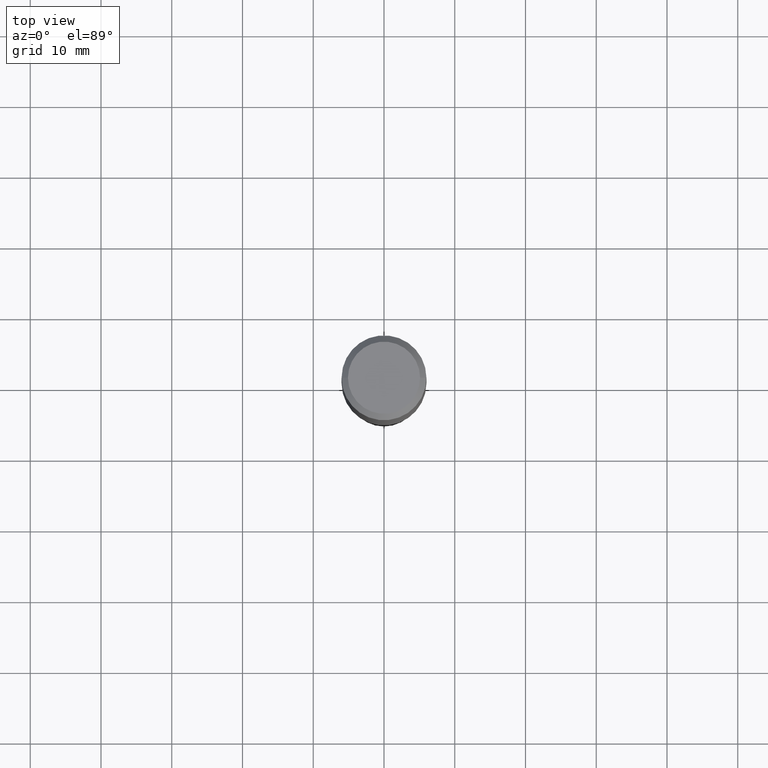
[diagram: clean part render]
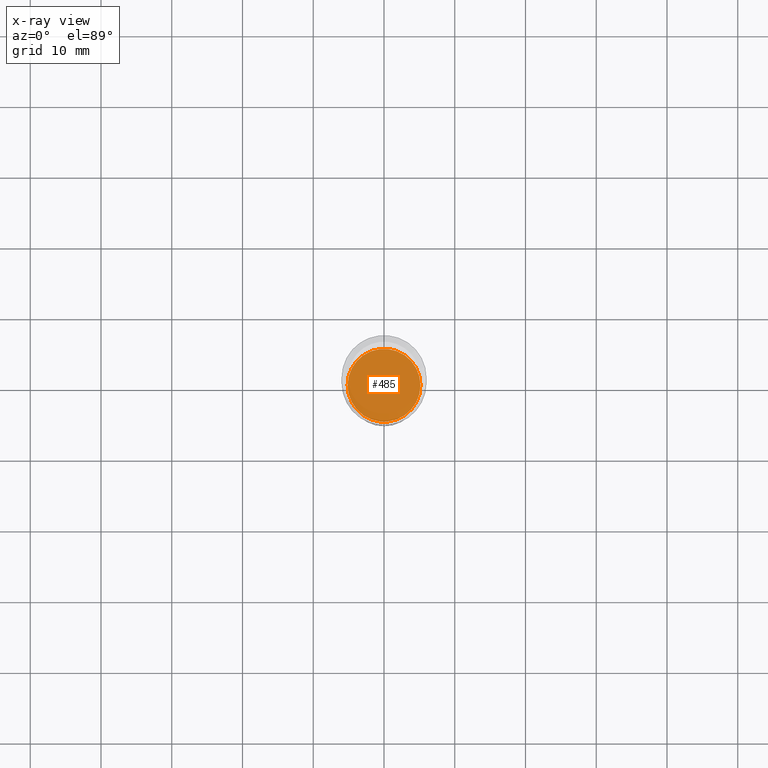
[diagram: x-ray — body ghosted, one internal face saturated and labeled with its STEP entity id]
A machine part, top view, then the same camera in x-ray: the body is ghosted and one INTERNAL B-rep face — a face not visible from any outside direction — is saturated and labeled: STEP entity #485.
In plain terms, the highlighted planar face has unit normal (-0, 0, 1).
Its self-contained STEP definition (entity closure, byte-faithful):
#2 = CARTESIAN_POINT ( 'NONE',  ( 0.2026000000000000023, -9.937105038481469945E-15, -2.440900000000000070 ) ) ;
#40 = CARTESIAN_POINT ( 'NONE',  ( 5.969144809017299038E-29, -8.522356799982232966E-15, -2.440900000000000070 ) ) ;
#101 = EDGE_LOOP ( 'NONE', ( #323, #146 ) ) ;
#107 = AXIS2_PLACEMENT_3D ( 'NONE', #283, #490, #350 ) ;
#136 = VERTEX_POINT ( 'NONE', #261 ) ;
#141 = FACE_OUTER_BOUND ( 'NONE', #101, .T. ) ;
#146 = ORIENTED_EDGE ( 'NONE', *, *, #389, .F. ) ;
#203 = CIRCLE ( 'NONE', #290, 0.2026000000000000023 ) ;
#208 = DIRECTION ( 'NONE',  ( 1.000000000000000000, -6.982962677686265922E-15, 4.876176775795935793E-29 ) ) ;
#229 = VERTEX_POINT ( 'NONE', #2 ) ;
#232 = EDGE_CURVE ( 'NONE', #229, #136, #203, .T. ) ;
#261 = CARTESIAN_POINT ( 'NONE',  ( -0.2026000000000000023, -7.080147990158159560E-15, -2.440900000000000070 ) ) ;
#283 = CARTESIAN_POINT ( 'NONE',  ( 5.969144809017299038E-29, -8.522356799982232966E-15, -2.440900000000000070 ) ) ;
#290 = AXIS2_PLACEMENT_3D ( 'NONE', #40, #306, #416 ) ;
#306 = DIRECTION ( 'NONE',  ( -2.445468806185136597E-29, 3.491481338843145583E-15, 1.000000000000000000 ) ) ;
#323 = ORIENTED_EDGE ( 'NONE', *, *, #232, .F. ) ;
#350 = DIRECTION ( 'NONE',  ( 1.000000000000000000, -6.982962677686261189E-15, 0.000000000000000000 ) ) ;
#389 = EDGE_CURVE ( 'NONE', #136, #229, #469, .T. ) ;
#393 = CARTESIAN_POINT ( 'NONE',  ( 5.969144809017299038E-29, -8.522356799982232966E-15, -2.440900000000000070 ) ) ;
#416 = DIRECTION ( 'NONE',  ( 1.000000000000000000, -6.982962677686261189E-15, 0.000000000000000000 ) ) ;
#420 = AXIS2_PLACEMENT_3D ( 'NONE', #393, #466, #208 ) ;
#427 = PLANE ( 'NONE',  #420 ) ;
#466 = DIRECTION ( 'NONE',  ( -2.438088387897960049E-29, 3.491481338843145188E-15, 1.000000000000000000 ) ) ;
#469 = CIRCLE ( 'NONE', #107, 0.2026000000000000023 ) ;
#485 = ADVANCED_FACE ( 'NONE', ( #141 ), #427, .F. ) ;
#490 = DIRECTION ( 'NONE',  ( -2.445468806185136597E-29, 3.491481338843145583E-15, 1.000000000000000000 ) ) ;